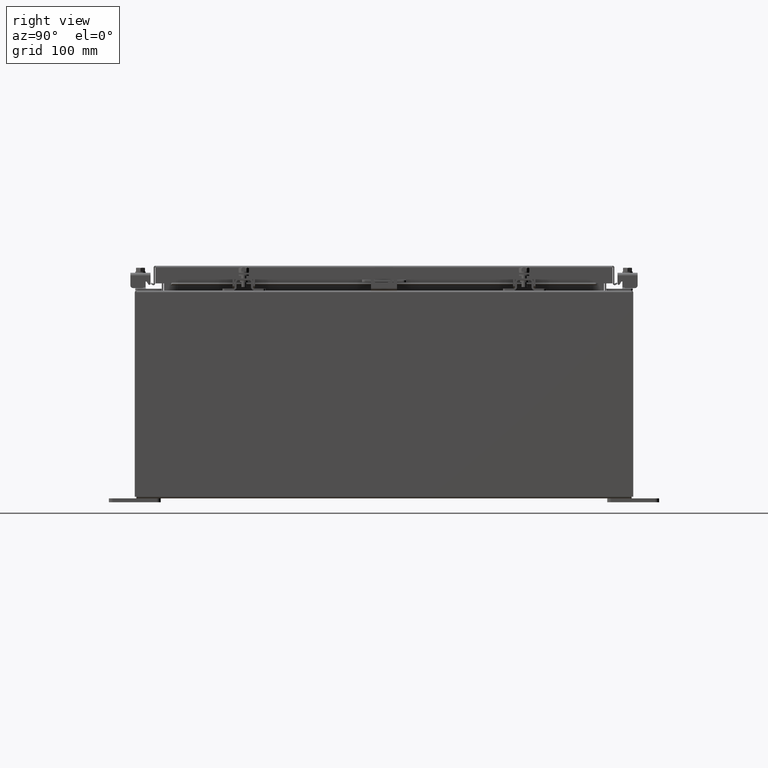
[diagram: clean part render]
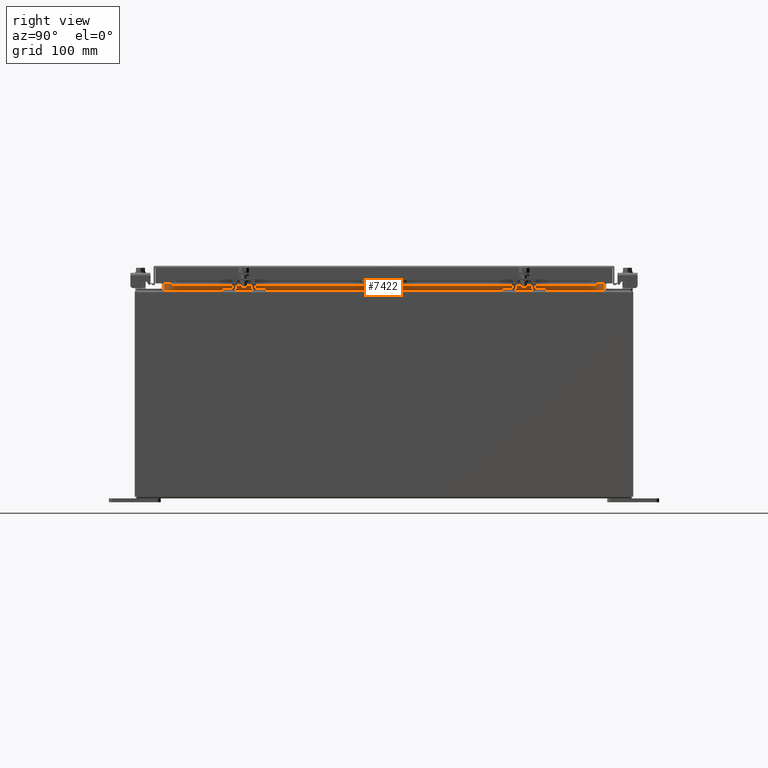
[diagram: same view with one face highlighted and labeled with its STEP entity id]
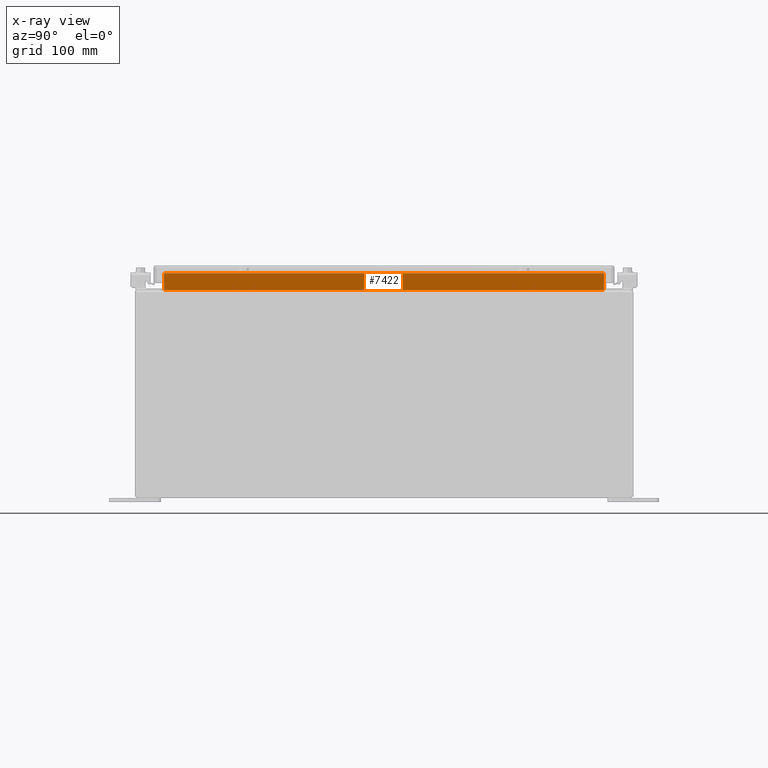
[diagram: x-ray of the same camera — body ghosted, the highlighted face saturated]
A machine part, right view. The second image highlights one B-rep face of the part: STEP entity #7422.
The next image is the same camera in x-ray: the body ghosted, the highlighted face saturated — about 0% of this face is hidden behind the body in this view.
In plain terms, the highlighted planar face has unit normal (1, 0, -0).
Its self-contained STEP definition (entity closure, byte-faithful):
#1424 = LINE ( 'NONE', #18411, #7308 ) ;
#1956 = CARTESIAN_POINT ( 'NONE',  ( 8.699700000000037300, -10.59375000000000000, 10.85060000000001100 ) ) ;
#2123 = EDGE_CURVE ( 'NONE', #24594, #9509, #5680, .T. ) ;
#2241 = EDGE_CURVE ( 'NONE', #9509, #13668, #3342, .T. ) ;
#2637 = ORIENTED_EDGE ( 'NONE', *, *, #2241, .F. ) ;
#3342 = LINE ( 'NONE', #1956, #28403 ) ;
#3786 = FACE_OUTER_BOUND ( 'NONE', #15826, .T. ) ;
#3832 = VECTOR ( 'NONE', #17769, 39.37007874015748100 ) ;
#5236 = CARTESIAN_POINT ( 'NONE',  ( 8.699700000000035500, -10.59374999999999800, 9.938300000000008800 ) ) ;
#5680 = LINE ( 'NONE', #19009, #24879 ) ;
#6762 = CARTESIAN_POINT ( 'NONE',  ( 8.699700000000037300, -10.59375000000000000, 10.76290000000001100 ) ) ;
#7308 = VECTOR ( 'NONE', #13334, 39.37007874015748100 ) ;
#7422 = ADVANCED_FACE ( 'NONE', ( #3786 ), #26248, .T. ) ;
#9265 = AXIS2_PLACEMENT_3D ( 'NONE', #23696, #13733, #31309 ) ;
#9482 = ORIENTED_EDGE ( 'NONE', *, *, #2123, .F. ) ;
#9509 = VERTEX_POINT ( 'NONE', #5236 ) ;
#10879 = EDGE_CURVE ( 'NONE', #15935, #24594, #1424, .T. ) ;
#11996 = DIRECTION ( 'NONE',  ( 2.361913319930198800E-015, -0.0000000000000000000, 1.000000000000000000 ) ) ;
#12712 = CARTESIAN_POINT ( 'NONE',  ( 8.699700000000035500, -10.59375000000000000, 10.76290000000001100 ) ) ;
#13334 = DIRECTION ( 'NONE',  ( -2.361913319930193300E-015, -0.0000000000000000000, -1.000000000000000000 ) ) ;
#13668 = VERTEX_POINT ( 'NONE', #6762 ) ;
#13733 = DIRECTION ( 'NONE',  ( 1.000000000000000000, 0.0000000000000000000, -2.361913319930193300E-015 ) ) ;
#15826 = EDGE_LOOP ( 'NONE', ( #19941, #15952, #2637, #9482 ) ) ;
#15935 = VERTEX_POINT ( 'NONE', #17404 ) ;
#15952 = ORIENTED_EDGE ( 'NONE', *, *, #20174, .F. ) ;
#17151 = LINE ( 'NONE', #12712, #3832 ) ;
#17404 = CARTESIAN_POINT ( 'NONE',  ( 8.699700000000035500, 10.59374999999999600, 10.76290000000001100 ) ) ;
#17769 = DIRECTION ( 'NONE',  ( 0.0000000000000000000, 1.000000000000000000, 0.0000000000000000000 ) ) ;
#18411 = CARTESIAN_POINT ( 'NONE',  ( 8.699700000000035500, 10.59374999999999600, 9.925300000000008900 ) ) ;
#19009 = CARTESIAN_POINT ( 'NONE',  ( 8.699700000000035500, 10.59374999999999600, 9.938300000000008800 ) ) ;
#19941 = ORIENTED_EDGE ( 'NONE', *, *, #10879, .F. ) ;
#20174 = EDGE_CURVE ( 'NONE', #13668, #15935, #17151, .T. ) ;
#23516 = CARTESIAN_POINT ( 'NONE',  ( 8.699700000000035500, 10.59374999999999600, 9.938300000000008800 ) ) ;
#23696 = CARTESIAN_POINT ( 'NONE',  ( 8.699700000000012400, 0.0000000000000000000, -2.054793730939673200E-014 ) ) ;
#23926 = DIRECTION ( 'NONE',  ( 1.031494227696241200E-016, -1.000000000000000000, 1.031494227696241200E-016 ) ) ;
#24594 = VERTEX_POINT ( 'NONE', #23516 ) ;
#24879 = VECTOR ( 'NONE', #23926, 39.37007874015748100 ) ;
#26248 = PLANE ( 'NONE',  #9265 ) ;
#28403 = VECTOR ( 'NONE', #11996, 39.37007874015748100 ) ;
#31309 = DIRECTION ( 'NONE',  ( -2.361913319930193300E-015, 0.0000000000000000000, -1.000000000000000000 ) ) ;